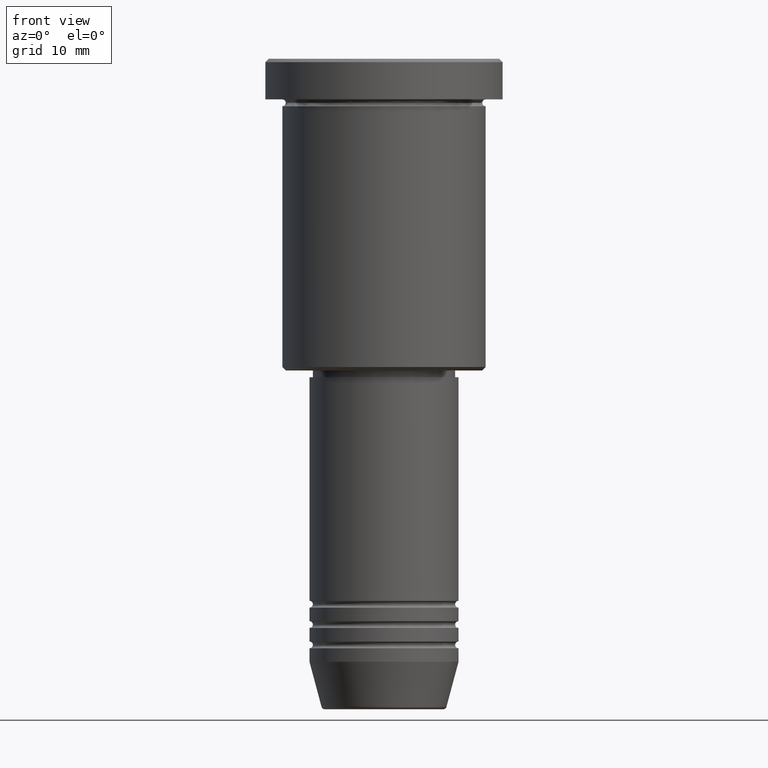
[diagram: clean part render]
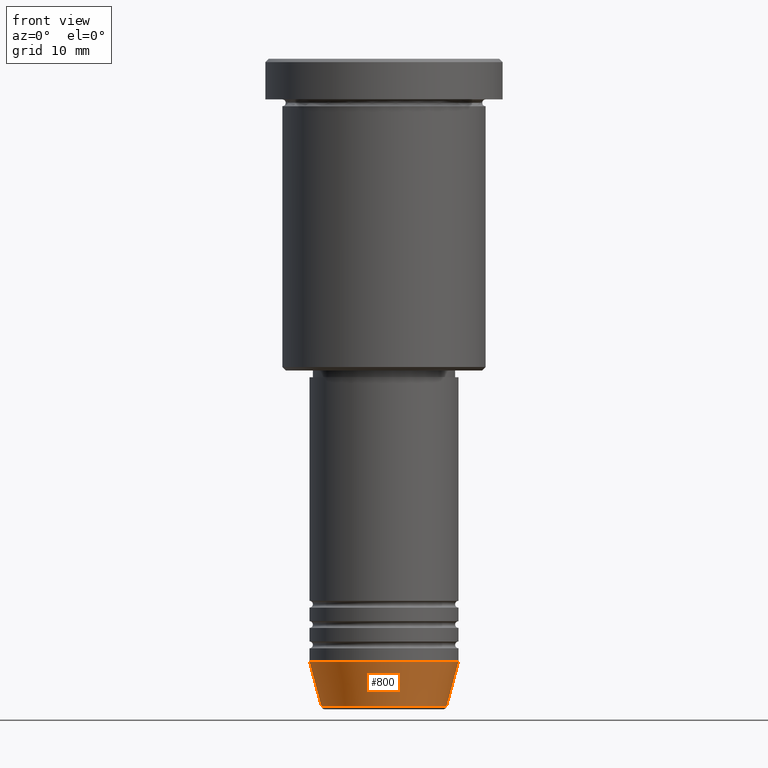
[diagram: same view with one face highlighted and labeled with its STEP entity id]
A machine part, front view. The second image highlights one B-rep face of the part: STEP entity #800.
In plain terms, the highlighted conical surface has half-angle 15 deg.
Its self-contained STEP definition (entity closure, byte-faithful):
#29 = CIRCLE ( 'NONE', #701, 9.223655072137187716 ) ;
#84 = VECTOR ( 'NONE', #594, 1000.000000000000000 ) ;
#86 = DIRECTION ( 'NONE',  ( 1.000000000000000000, 0.000000000000000000, 0.000000000000000000 ) ) ;
#100 = VERTEX_POINT ( 'NONE', #656 ) ;
#168 = EDGE_CURVE ( 'NONE', #100, #339, #960, .T. ) ;
#171 = DIRECTION ( 'NONE',  ( -0.000000000000000000, -0.000000000000000000, 1.000000000000000000 ) ) ;
#182 = DIRECTION ( 'NONE',  ( -0.2588190451025213501, 3.169619151431772337E-17, 0.9659258262890680902 ) ) ;
#204 = AXIS2_PLACEMENT_3D ( 'NONE', #448, #360, #266 ) ;
#222 = CARTESIAN_POINT ( 'NONE',  ( 11.00000000000000000, 0.000000000000000000, -89.00000000000000000 ) ) ;
#227 = CARTESIAN_POINT ( 'NONE',  ( -9.223655072137187716, 1.238341722557647004E-15, -95.62940952255125637 ) ) ;
#259 = VECTOR ( 'NONE', #182, 1000.000000000000000 ) ;
#265 = CARTESIAN_POINT ( 'NONE',  ( -11.00000000000000000, 1.347111479062088405E-15, -89.00000000000000000 ) ) ;
#266 = DIRECTION ( 'NONE',  ( 1.000000000000000000, 0.000000000000000000, 0.000000000000000000 ) ) ;
#307 = EDGE_CURVE ( 'NONE', #661, #339, #1049, .T. ) ;
#323 = CARTESIAN_POINT ( 'NONE',  ( 0.000000000000000000, 0.000000000000000000, -95.62940952255125637 ) ) ;
#339 = VERTEX_POINT ( 'NONE', #222 ) ;
#354 = EDGE_LOOP ( 'NONE', ( #979, #557, #767, #395 ) ) ;
#360 = DIRECTION ( 'NONE',  ( -0.000000000000000000, -0.000000000000000000, 1.000000000000000000 ) ) ;
#395 = ORIENTED_EDGE ( 'NONE', *, *, #168, .F. ) ;
#447 = FACE_OUTER_BOUND ( 'NONE', #354, .T. ) ;
#448 = CARTESIAN_POINT ( 'NONE',  ( 0.000000000000000000, 0.000000000000000000, -89.00000000000000000 ) ) ;
#490 = CARTESIAN_POINT ( 'NONE',  ( 11.00000000000000000, 0.000000000000000000, -89.00000000000000000 ) ) ;
#557 = ORIENTED_EDGE ( 'NONE', *, *, #696, .T. ) ;
#594 = DIRECTION ( 'NONE',  ( 0.2588190451025213501, 0.000000000000000000, 0.9659258262890680902 ) ) ;
#626 = CARTESIAN_POINT ( 'NONE',  ( 0.000000000000000000, 0.000000000000000000, -89.00000000000000000 ) ) ;
#656 = CARTESIAN_POINT ( 'NONE',  ( -11.00000000000000000, 1.347111479062088405E-15, -89.00000000000000000 ) ) ;
#661 = VERTEX_POINT ( 'NONE', #774 ) ;
#673 = VERTEX_POINT ( 'NONE', #227 ) ;
#696 = EDGE_CURVE ( 'NONE', #673, #661, #29, .T. ) ;
#701 = AXIS2_PLACEMENT_3D ( 'NONE', #323, #970, #1055 ) ;
#748 = EDGE_CURVE ( 'NONE', #673, #100, #1075, .T. ) ;
#749 = CONICAL_SURFACE ( 'NONE', #905, 11.00000000000000000, 0.2617993877991500740 ) ;
#767 = ORIENTED_EDGE ( 'NONE', *, *, #307, .T. ) ;
#774 = CARTESIAN_POINT ( 'NONE',  ( 9.223655072137187716, 0.000000000000000000, -95.62940952255125637 ) ) ;
#800 = ADVANCED_FACE ( 'NONE', ( #447 ), #749, .T. ) ;
#905 = AXIS2_PLACEMENT_3D ( 'NONE', #626, #171, #86 ) ;
#960 = CIRCLE ( 'NONE', #204, 11.00000000000000000 ) ;
#970 = DIRECTION ( 'NONE',  ( -0.000000000000000000, -0.000000000000000000, 1.000000000000000000 ) ) ;
#979 = ORIENTED_EDGE ( 'NONE', *, *, #748, .F. ) ;
#1049 = LINE ( 'NONE', #490, #84 ) ;
#1055 = DIRECTION ( 'NONE',  ( 1.000000000000000000, 0.000000000000000000, 0.000000000000000000 ) ) ;
#1075 = LINE ( 'NONE', #265, #259 ) ;